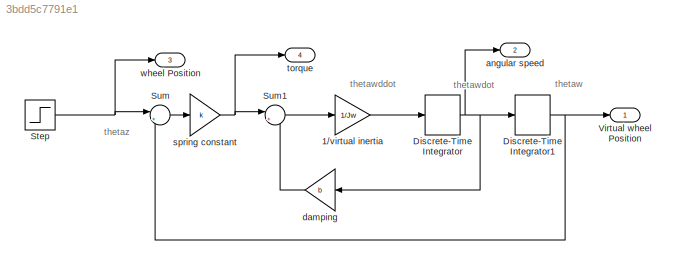
MODEL slx_3bdd5c7791e1
KIND model
CONFIG AbsTol = auto
CONFIG EnableMultiTasking = on
CONFIG FixedStep = Deltat
CONFIG MaxStep = auto
CONFIG MinStep = auto
CONFIG RelTol = 1e-3
CONFIG SampleTimeConstraint = Unconstrained
CONFIG Solver = ode4
CONFIG SolverName = ode4
CONFIG StartTime = 0.0
CONFIG StopTime = tfinal
BLOCK [Gain] 1//virtual inertia
  Gain = 1/Jw
  OutDataTypeStr = Inherit: Same as input
  ParamDataTypeStr = Inherit: Same as input
  SaturateOnIntegerOverflow = on
BLOCK [DiscreteIntegrator] Discrete-Time Integrator
  ICPrevOutput = DiscIntNeverNeededParam
  ICPrevScaledInput = DiscIntNeverNeededParam
  Ports = [1, 1]
  SampleTime = T
BLOCK [DiscreteIntegrator] Discrete-Time Integrator1
  ICPrevOutput = DiscIntNeverNeededParam
  ICPrevScaledInput = DiscIntNeverNeededParam
  Ports = [1, 1]
  SampleTime = T
BLOCK [Step] Step
  After = Theta_z_0
  SampleTime = 0
  Time = step_time
BLOCK [Sum] Sum
  InputSameDT = on
  Inputs = |+-
  OutDataTypeStr = Inherit: Same as first input
  Ports = [2, 1]
  SaturateOnIntegerOverflow = on
BLOCK [Sum] Sum1
  InputSameDT = on
  Inputs = |+-
  OutDataTypeStr = Inherit: Same as first input
  Ports = [2, 1]
  SaturateOnIntegerOverflow = on
BLOCK [Outport] Virtual wheel Position
  VectorParamsAs1DForOutWhenUnconnected = off
BLOCK [Outport] angular speed
  Port = 2
  VectorParamsAs1DForOutWhenUnconnected = off
BLOCK [Gain] damping
  Gain = b
  OutDataTypeStr = Inherit: Same as input
  ParamDataTypeStr = Inherit: Same as input
  SaturateOnIntegerOverflow = on
BLOCK [Gain] spring constant
  Gain = k
  OutDataTypeStr = Inherit: Same as input
  ParamDataTypeStr = Inherit: Same as input
  SaturateOnIntegerOverflow = on
BLOCK [Outport] torque
  Port = 4
  VectorParamsAs1DForOutWhenUnconnected = off
BLOCK [Outport] wheel Position
  Port = 3
  VectorParamsAs1DForOutWhenUnconnected = off
ANNOTATION (root): thetaw
ANNOTATION (root): thetawddot
ANNOTATION (root): thetawdot
ANNOTATION (root): thetaz
LINE 1//virtual inertia:1 -> Discrete-Time Integrator:1
NET Discrete-Time Integrator1:1 -> Sum:2, Virtual wheel Position:1
NET Discrete-Time Integrator:1 -> Discrete-Time Integrator1:1, angular speed:1, damping:1
NET Step:1 -> Sum:1, wheel Position:1
LINE Sum1:1 -> 1//virtual inertia:1
LINE Sum:1 -> spring constant:1
LINE damping:1 -> Sum1:2
NET spring constant:1 -> Sum1:1, torque:1
note: NET lines group one-source signal fan-out (src -> all destinations, sorted); 1:1 wires keep LINE
